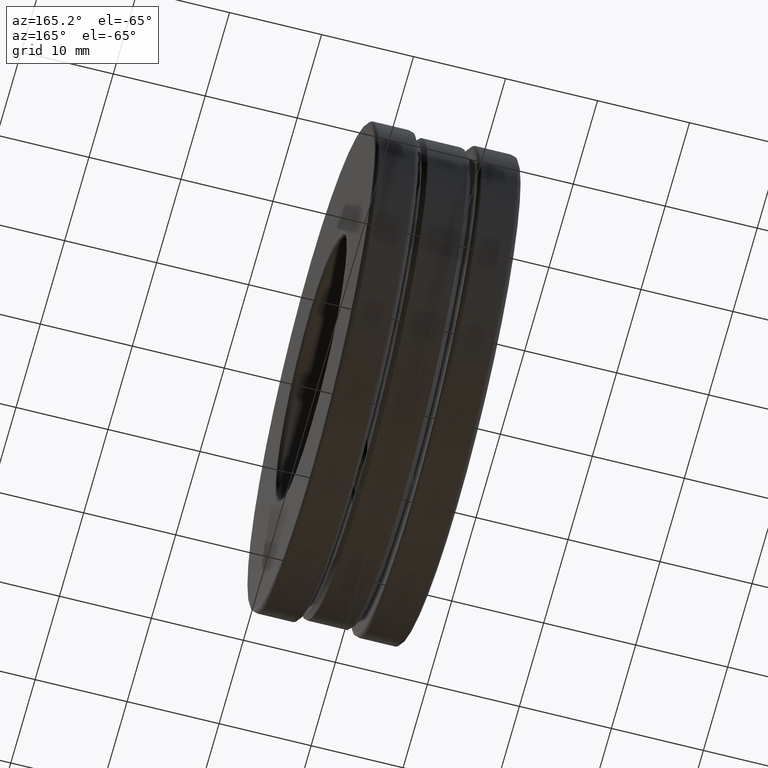
[diagram: clean part render]
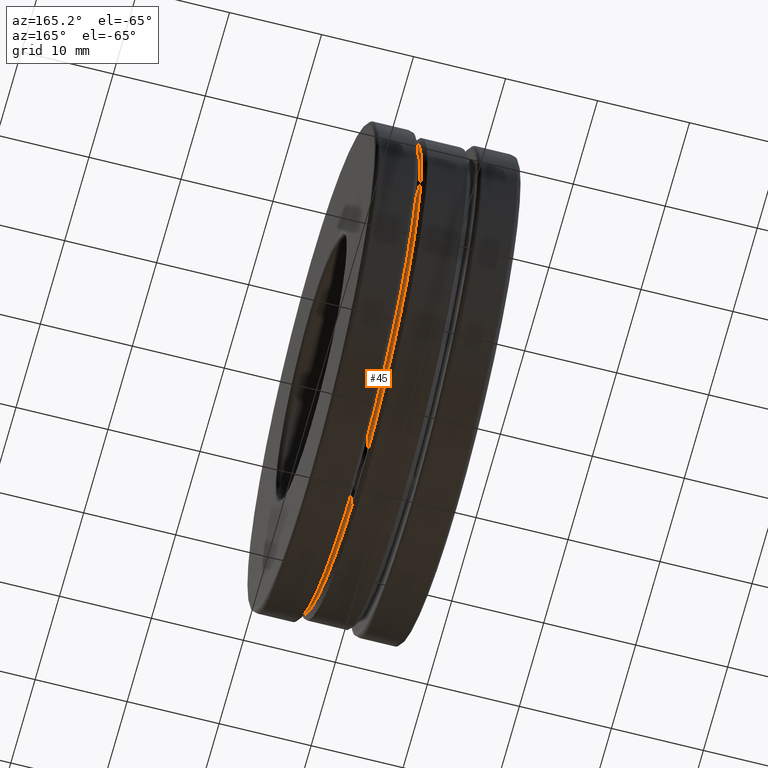
[diagram: same view with one face highlighted and labeled with its STEP entity id]
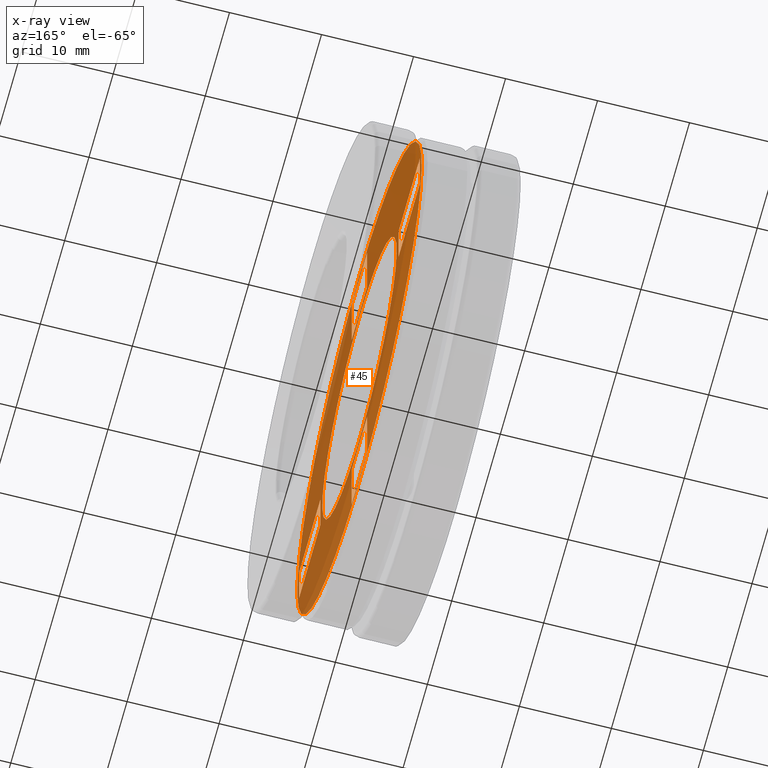
[diagram: x-ray of the same camera — body ghosted, the highlighted face saturated]
A machine part, auxiliary view. The second image highlights one B-rep face of the part: STEP entity #45.
The next image is the same camera in x-ray: the body ghosted, the highlighted face saturated — about 71% of this face is hidden behind the body in this view.
In plain terms, the highlighted planar face has unit normal (1, 0, 0).
Its self-contained STEP definition (entity closure, byte-faithful):
#5 = VECTOR ( 'NONE', #683, 39.37007874015748100 ) ;
#8 = FACE_OUTER_BOUND ( 'NONE', #1377, .T. ) ;
#10 = VERTEX_POINT ( 'NONE', #522 ) ;
#13 = CARTESIAN_POINT ( 'NONE',  ( 0.1050000000000000100, 0.0000000000000000000, 0.0000000000000000000 ) ) ;
#23 = VERTEX_POINT ( 'NONE', #512 ) ;
#32 = LINE ( 'NONE', #990, #1207 ) ;
#45 = ADVANCED_FACE ( 'NONE', ( #1107, #8, #1235, #556, #296, #1426 ), #996, .T. ) ;
#71 = LINE ( 'NONE', #915, #369 ) ;
#80 = DIRECTION ( 'NONE',  ( 0.0000000000000000000, 1.047444401652940000E-014, -1.000000000000000000 ) ) ;
#94 = DIRECTION ( 'NONE',  ( 0.0000000000000000000, 1.000000000000000000, 3.491481338843133700E-015 ) ) ;
#101 = CARTESIAN_POINT ( 'NONE',  ( 0.1050000000000000800, -0.6325000000000001700, -0.1250000000000000300 ) ) ;
#105 = CIRCLE ( 'NONE', #836, 1.006874999999999700 ) ;
#120 = VECTOR ( 'NONE', #152, 39.37007874015748100 ) ;
#124 = EDGE_CURVE ( 'NONE', #503, #476, #663, .T. ) ;
#125 = ORIENTED_EDGE ( 'NONE', *, *, #1345, .T. ) ;
#126 = CARTESIAN_POINT ( 'NONE',  ( 0.1050000000000000400, 0.1250000000000102400, -0.9768749999999986100 ) ) ;
#137 = LINE ( 'NONE', #574, #5 ) ;
#146 = VECTOR ( 'NONE', #669, 39.37007874015748100 ) ;
#152 = DIRECTION ( 'NONE',  ( 0.0000000000000000000, 1.057360365332302200E-014, -1.000000000000000000 ) ) ;
#159 = EDGE_CURVE ( 'NONE', #1162, #23, #71, .T. ) ;
#173 = ORIENTED_EDGE ( 'NONE', *, *, #1468, .T. ) ;
#180 = LINE ( 'NONE', #518, #1140 ) ;
#187 = EDGE_CURVE ( 'NONE', #752, #752, #105, .T. ) ;
#212 = DIRECTION ( 'NONE',  ( 0.0000000000000000000, -3.590640975636754400E-015, 1.000000000000000000 ) ) ;
#217 = DIRECTION ( 'NONE',  ( 0.0000000000000000000, 0.0000000000000000000, -1.000000000000000000 ) ) ;
#226 = VERTEX_POINT ( 'NONE', #126 ) ;
#228 = DIRECTION ( 'NONE',  ( 0.0000000000000000000, 0.0000000000000000000, 1.000000000000000000 ) ) ;
#237 = EDGE_CURVE ( 'NONE', #1057, #1288, #137, .T. ) ;
#238 = VERTEX_POINT ( 'NONE', #681 ) ;
#247 = CARTESIAN_POINT ( 'NONE',  ( 0.1050000000000000800, -0.6325000000000001700, -0.1250000000000000300 ) ) ;
#250 = LINE ( 'NONE', #1025, #886 ) ;
#285 = DIRECTION ( 'NONE',  ( 0.0000000000000000000, -1.000000000000000000, -9.915963679362121700E-017 ) ) ;
#291 = VECTOR ( 'NONE', #758, 39.37007874015748100 ) ;
#296 = FACE_BOUND ( 'NONE', #407, .T. ) ;
#300 = DIRECTION ( 'NONE',  ( 0.0000000000000000000, -1.000000000000000000, -1.047444401652940000E-014 ) ) ;
#320 = ORIENTED_EDGE ( 'NONE', *, *, #1114, .F. ) ;
#328 = DIRECTION ( 'NONE',  ( -0.0000000000000000000, 1.000000000000000000, 9.915963679362121700E-017 ) ) ;
#344 = DIRECTION ( 'NONE',  ( -1.000000000000000000, -0.0000000000000000000, -0.0000000000000000000 ) ) ;
#348 = LINE ( 'NONE', #353, #1231 ) ;
#353 = CARTESIAN_POINT ( 'NONE',  ( 0.1050000000000000400, 0.9768749999999999400, 0.0000000000000000000 ) ) ;
#369 = VECTOR ( 'NONE', #798, 39.37007874015748100 ) ;
#392 = DIRECTION ( 'NONE',  ( 0.0000000000000000000, 0.0000000000000000000, 1.000000000000000000 ) ) ;
#407 = EDGE_LOOP ( 'NONE', ( #1376, #1424, #1465, #967 ) ) ;
#415 = VECTOR ( 'NONE', #285, 39.37007874015748100 ) ;
#428 = DIRECTION ( 'NONE',  ( 1.000000000000000000, 0.0000000000000000000, 0.0000000000000000000 ) ) ;
#433 = VERTEX_POINT ( 'NONE', #863 ) ;
#437 = CIRCLE ( 'NONE', #1318, 0.6025000000000000400 ) ;
#440 = CARTESIAN_POINT ( 'NONE',  ( 0.1050000000000000800, 0.1249999999999978100, 0.6325000000000005100 ) ) ;
#441 = EDGE_CURVE ( 'NONE', #1288, #1428, #1317, .T. ) ;
#446 = EDGE_LOOP ( 'NONE', ( #812, #173, #1354, #1446 ) ) ;
#464 = EDGE_CURVE ( 'NONE', #1162, #524, #486, .T. ) ;
#475 = VERTEX_POINT ( 'NONE', #637 ) ;
#476 = VERTEX_POINT ( 'NONE', #1451 ) ;
#486 = LINE ( 'NONE', #619, #906 ) ;
#503 = VERTEX_POINT ( 'NONE', #705 ) ;
#511 = CARTESIAN_POINT ( 'NONE',  ( 0.1050000000000000800, 0.1250000000000066300, -0.6324999999999988400 ) ) ;
#512 = CARTESIAN_POINT ( 'NONE',  ( 0.1050000000000000400, 0.9768749999999999400, 0.1250000000000000300 ) ) ;
#518 = CARTESIAN_POINT ( 'NONE',  ( 0.1050000000000000800, 0.1250000000000102400, -0.9768749999999986100 ) ) ;
#522 = CARTESIAN_POINT ( 'NONE',  ( 0.1050000000000000400, 0.9768749999999999400, -0.1249999999999999900 ) ) ;
#524 = VERTEX_POINT ( 'NONE', #1145 ) ;
#556 = FACE_BOUND ( 'NONE', #446, .T. ) ;
#574 = CARTESIAN_POINT ( 'NONE',  ( 0.1050000000000000800, -0.6325000000000001700, -0.1250000000000000300 ) ) ;
#605 = LINE ( 'NONE', #247, #753 ) ;
#619 = CARTESIAN_POINT ( 'NONE',  ( 0.1050000000000000400, 0.6325000000000001700, 0.0000000000000000000 ) ) ;
#632 = EDGE_CURVE ( 'NONE', #23, #10, #348, .T. ) ;
#637 = CARTESIAN_POINT ( 'NONE',  ( 0.1050000000000000400, -0.1250000000000034400, 0.9768749999999994900 ) ) ;
#660 = VERTEX_POINT ( 'NONE', #695 ) ;
#663 = LINE ( 'NONE', #440, #1355 ) ;
#667 = EDGE_CURVE ( 'NONE', #1050, #660, #1248, .T. ) ;
#669 = DIRECTION ( 'NONE',  ( 0.0000000000000000000, 1.000000000000000000, 3.491481338843133000E-015 ) ) ;
#676 = EDGE_LOOP ( 'NONE', ( #981, #1389, #856, #1390 ) ) ;
#681 = CARTESIAN_POINT ( 'NONE',  ( 0.1050000000000000800, 0.1250000000000066300, -0.6324999999999988400 ) ) ;
#683 = DIRECTION ( 'NONE',  ( 0.0000000000000000000, 0.0000000000000000000, 1.000000000000000000 ) ) ;
#694 = EDGE_LOOP ( 'NONE', ( #1341, #1410, #1244, #320 ) ) ;
#695 = CARTESIAN_POINT ( 'NONE',  ( 0.1050000000000000800, -0.1249999999999897600, -0.9768750000000012700 ) ) ;
#705 = CARTESIAN_POINT ( 'NONE',  ( 0.1050000000000000800, 0.1249999999999978100, 0.6325000000000005100 ) ) ;
#732 = CARTESIAN_POINT ( 'NONE',  ( 0.1050000000000000800, -0.1250000000000022200, 0.6324999999999997300 ) ) ;
#751 = DIRECTION ( 'NONE',  ( 0.0000000000000000000, 0.0000000000000000000, -1.000000000000000000 ) ) ;
#752 = VERTEX_POINT ( 'NONE', #762 ) ;
#753 = VECTOR ( 'NONE', #819, 39.37007874015748100 ) ;
#758 = DIRECTION ( 'NONE',  ( 0.0000000000000000000, -1.000000000000000000, -1.047444401652940000E-014 ) ) ;
#762 = CARTESIAN_POINT ( 'NONE',  ( 0.1050000000000000100, 0.0000000000000000000, 1.006874999999999700 ) ) ;
#791 = CARTESIAN_POINT ( 'NONE',  ( 0.1050000000000000800, -0.1250000000000022200, 0.6324999999999997300 ) ) ;
#798 = DIRECTION ( 'NONE',  ( -0.0000000000000000000, 1.000000000000000000, 0.0000000000000000000 ) ) ;
#801 = AXIS2_PLACEMENT_3D ( 'NONE', #1453, #428, #217 ) ;
#812 = ORIENTED_EDGE ( 'NONE', *, *, #1436, .T. ) ;
#819 = DIRECTION ( 'NONE',  ( 0.0000000000000000000, -1.000000000000000000, 0.0000000000000000000 ) ) ;
#836 = AXIS2_PLACEMENT_3D ( 'NONE', #13, #344, #228 ) ;
#839 = DIRECTION ( 'NONE',  ( 0.0000000000000000000, 0.0000000000000000000, 1.000000000000000000 ) ) ;
#856 = ORIENTED_EDGE ( 'NONE', *, *, #1060, .F. ) ;
#863 = CARTESIAN_POINT ( 'NONE',  ( 0.1050000000000000800, 0.0000000000000000000, 0.6025000000000000400 ) ) ;
#886 = VECTOR ( 'NONE', #328, 39.37007874015748100 ) ;
#906 = VECTOR ( 'NONE', #751, 39.37007874015748100 ) ;
#915 = CARTESIAN_POINT ( 'NONE',  ( 0.1050000000000000400, 1.773378913970623200E-017, 0.1250000000000000300 ) ) ;
#923 = VECTOR ( 'NONE', #94, 39.37007874015748100 ) ;
#929 = VERTEX_POINT ( 'NONE', #1226 ) ;
#954 = LINE ( 'NONE', #791, #1210 ) ;
#967 = ORIENTED_EDGE ( 'NONE', *, *, #237, .F. ) ;
#975 = CARTESIAN_POINT ( 'NONE',  ( 0.1050000000000000800, 0.0000000000000000000, 0.0000000000000000000 ) ) ;
#981 = ORIENTED_EDGE ( 'NONE', *, *, #159, .T. ) ;
#986 = CARTESIAN_POINT ( 'NONE',  ( 0.1050000000000000800, -0.9768749999999999400, 0.1249999999999999900 ) ) ;
#990 = CARTESIAN_POINT ( 'NONE',  ( 0.1050000000000000800, 0.1250000000000066300, -0.6324999999999988400 ) ) ;
#992 = VECTOR ( 'NONE', #392, 39.37007874015748100 ) ;
#996 = PLANE ( 'NONE',  #801 ) ;
#1006 = EDGE_CURVE ( 'NONE', #238, #1050, #1372, .T. ) ;
#1009 = CARTESIAN_POINT ( 'NONE',  ( 0.1050000000000000800, -0.1250000000000022200, 0.6324999999999997300 ) ) ;
#1025 = CARTESIAN_POINT ( 'NONE',  ( 0.1050000000000000400, 3.012874373890889300E-017, -0.1250000000000000800 ) ) ;
#1050 = VERTEX_POINT ( 'NONE', #1456 ) ;
#1054 = ORIENTED_EDGE ( 'NONE', *, *, #187, .F. ) ;
#1057 = VERTEX_POINT ( 'NONE', #101 ) ;
#1060 = EDGE_CURVE ( 'NONE', #524, #10, #250, .T. ) ;
#1072 = DIRECTION ( 'NONE',  ( 0.0000000000000000000, -3.491481338843133000E-015, 1.000000000000000000 ) ) ;
#1092 = DIRECTION ( 'NONE',  ( -1.000000000000000000, -0.0000000000000000000, -0.0000000000000000000 ) ) ;
#1094 = EDGE_CURVE ( 'NONE', #475, #476, #1422, .T. ) ;
#1107 = FACE_BOUND ( 'NONE', #1165, .T. ) ;
#1114 = EDGE_CURVE ( 'NONE', #1305, #503, #1439, .T. ) ;
#1117 = CARTESIAN_POINT ( 'NONE',  ( 0.1050000000000000800, -0.6325000000000001700, 0.1250000000000000300 ) ) ;
#1128 = CARTESIAN_POINT ( 'NONE',  ( 0.1050000000000000800, -0.1250000000000034400, 0.9768749999999994900 ) ) ;
#1140 = VECTOR ( 'NONE', #300, 39.37007874015748100 ) ;
#1145 = CARTESIAN_POINT ( 'NONE',  ( 0.1050000000000000400, 0.6325000000000001700, -0.1250000000000000300 ) ) ;
#1162 = VERTEX_POINT ( 'NONE', #1241 ) ;
#1165 = EDGE_LOOP ( 'NONE', ( #125 ) ) ;
#1191 = EDGE_CURVE ( 'NONE', #1305, #475, #954, .T. ) ;
#1193 = LINE ( 'NONE', #1413, #992 ) ;
#1207 = VECTOR ( 'NONE', #80, 39.37007874015748100 ) ;
#1210 = VECTOR ( 'NONE', #1072, 39.37007874015748100 ) ;
#1226 = CARTESIAN_POINT ( 'NONE',  ( 0.1050000000000000400, -0.9768749999999999400, -0.1250000000000000300 ) ) ;
#1231 = VECTOR ( 'NONE', #1272, 39.37007874015748100 ) ;
#1235 = FACE_BOUND ( 'NONE', #676, .T. ) ;
#1241 = CARTESIAN_POINT ( 'NONE',  ( 0.1050000000000000400, 0.6325000000000001700, 0.1250000000000000300 ) ) ;
#1244 = ORIENTED_EDGE ( 'NONE', *, *, #124, .F. ) ;
#1248 = LINE ( 'NONE', #1304, #120 ) ;
#1256 = CARTESIAN_POINT ( 'NONE',  ( 0.1050000000000000800, -0.6325000000000001700, 0.1250000000000000300 ) ) ;
#1258 = EDGE_CURVE ( 'NONE', #1057, #929, #605, .T. ) ;
#1272 = DIRECTION ( 'NONE',  ( 0.0000000000000000000, 0.0000000000000000000, -1.000000000000000000 ) ) ;
#1288 = VERTEX_POINT ( 'NONE', #1256 ) ;
#1292 = EDGE_CURVE ( 'NONE', #929, #1428, #1193, .T. ) ;
#1304 = CARTESIAN_POINT ( 'NONE',  ( 0.1050000000000000800, -0.1249999999999933900, -0.6325000000000015100 ) ) ;
#1305 = VERTEX_POINT ( 'NONE', #732 ) ;
#1317 = LINE ( 'NONE', #1117, #415 ) ;
#1318 = AXIS2_PLACEMENT_3D ( 'NONE', #975, #1092, #839 ) ;
#1341 = ORIENTED_EDGE ( 'NONE', *, *, #1191, .T. ) ;
#1345 = EDGE_CURVE ( 'NONE', #433, #433, #437, .T. ) ;
#1354 = ORIENTED_EDGE ( 'NONE', *, *, #667, .F. ) ;
#1355 = VECTOR ( 'NONE', #212, 39.37007874015748100 ) ;
#1372 = LINE ( 'NONE', #511, #291 ) ;
#1376 = ORIENTED_EDGE ( 'NONE', *, *, #1258, .T. ) ;
#1377 = EDGE_LOOP ( 'NONE', ( #1054 ) ) ;
#1389 = ORIENTED_EDGE ( 'NONE', *, *, #632, .T. ) ;
#1390 = ORIENTED_EDGE ( 'NONE', *, *, #464, .F. ) ;
#1410 = ORIENTED_EDGE ( 'NONE', *, *, #1094, .T. ) ;
#1413 = CARTESIAN_POINT ( 'NONE',  ( 0.1050000000000000800, -0.9768749999999999400, -0.1250000000000000300 ) ) ;
#1422 = LINE ( 'NONE', #1128, #146 ) ;
#1424 = ORIENTED_EDGE ( 'NONE', *, *, #1292, .T. ) ;
#1426 = FACE_BOUND ( 'NONE', #694, .T. ) ;
#1428 = VERTEX_POINT ( 'NONE', #986 ) ;
#1436 = EDGE_CURVE ( 'NONE', #238, #226, #32, .T. ) ;
#1439 = LINE ( 'NONE', #1009, #923 ) ;
#1446 = ORIENTED_EDGE ( 'NONE', *, *, #1006, .F. ) ;
#1451 = CARTESIAN_POINT ( 'NONE',  ( 0.1050000000000000800, 0.1249999999999965700, 0.9768750000000003800 ) ) ;
#1453 = CARTESIAN_POINT ( 'NONE',  ( 0.1050000000000000400, 1.773378913970623200E-017, 0.0000000000000000000 ) ) ;
#1456 = CARTESIAN_POINT ( 'NONE',  ( 0.1050000000000000800, -0.1249999999999933900, -0.6325000000000015100 ) ) ;
#1465 = ORIENTED_EDGE ( 'NONE', *, *, #441, .F. ) ;
#1468 = EDGE_CURVE ( 'NONE', #226, #660, #180, .T. ) ;